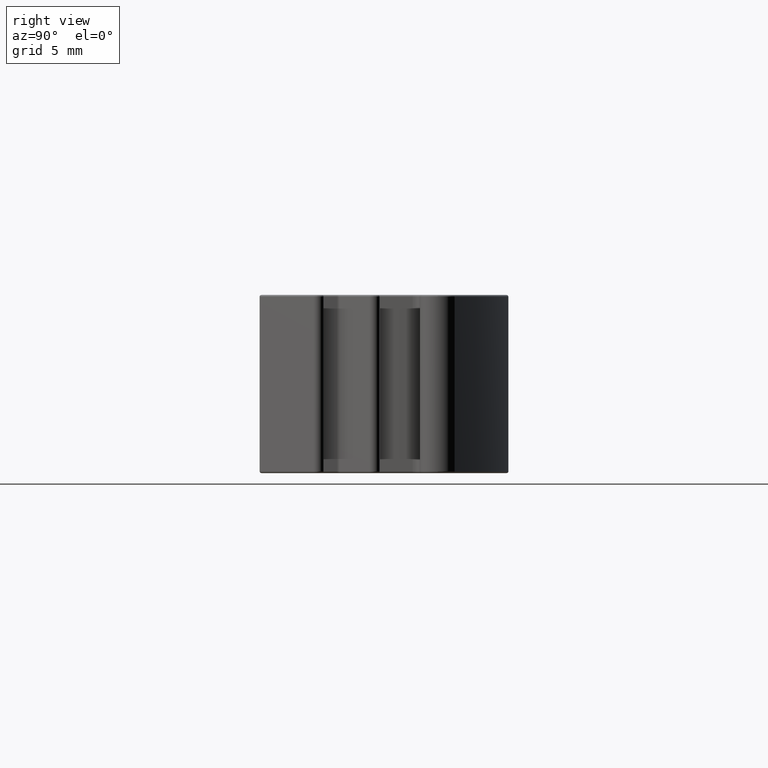
[diagram: clean part render]
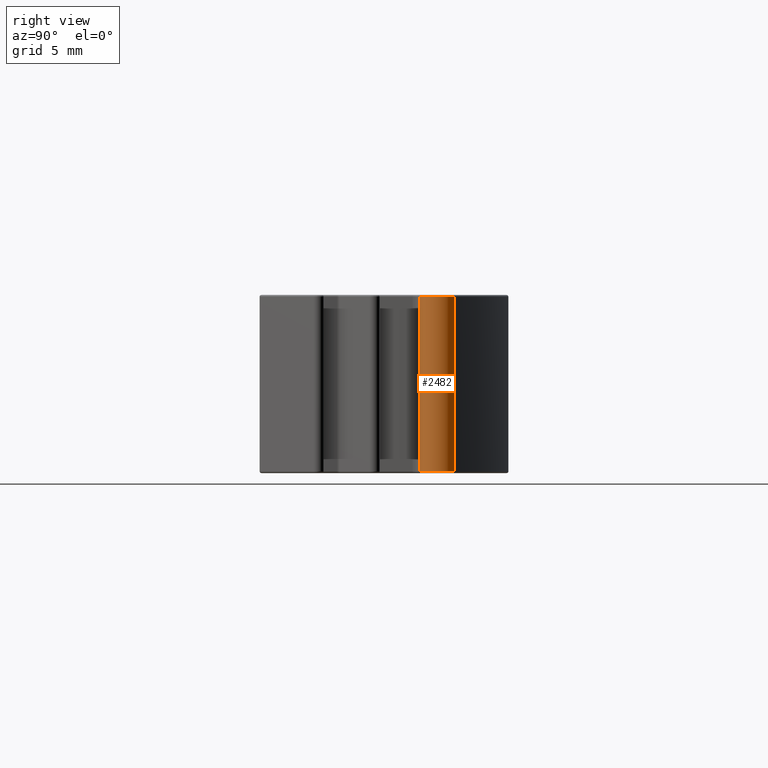
[diagram: same view with one face highlighted and labeled with its STEP entity id]
A machine part, right view. The second image highlights one B-rep face of the part: STEP entity #2482.
In plain terms, the highlighted cylindrical surface (edge-blend (fillet) strip) has radius 1 mm, axis along (0, 0, 1).
Its self-contained STEP definition (entity closure, byte-faithful):
#126 = LINE ( 'NONE', #732, #2239 ) ;
#179 = VECTOR ( 'NONE', #1301, 1000.000000000000000 ) ;
#221 = ORIENTED_EDGE ( 'NONE', *, *, #757, .T. ) ;
#319 = ORIENTED_EDGE ( 'NONE', *, *, #2400, .T. ) ;
#332 = LINE ( 'NONE', #576, #179 ) ;
#404 = AXIS2_PLACEMENT_3D ( 'NONE', #2473, #2204, #2907 ) ;
#436 = CIRCLE ( 'NONE', #404, 1.000000000000000900 ) ;
#576 = CARTESIAN_POINT ( 'NONE',  ( 17.64999999999999900, 8.999999999999998200, -5.000000000000000000 ) ) ;
#618 = DIRECTION ( 'NONE',  ( 1.000000000000000000, 0.0000000000000000000, 0.0000000000000000000 ) ) ;
#702 = VERTEX_POINT ( 'NONE', #2453 ) ;
#732 = CARTESIAN_POINT ( 'NONE',  ( 17.98039802197973500, 10.94384169598078000, -5.000000000000000000 ) ) ;
#757 = EDGE_CURVE ( 'NONE', #2553, #702, #2004, .T. ) ;
#777 = DIRECTION ( 'NONE',  ( 1.000000000000000000, 0.0000000000000000000, 0.0000000000000000000 ) ) ;
#778 = VERTEX_POINT ( 'NONE', #1295 ) ;
#845 = CIRCLE ( 'NONE', #1808, 1.000000000000000900 ) ;
#852 = EDGE_CURVE ( 'NONE', #778, #1712, #2668, .T. ) ;
#868 = CARTESIAN_POINT ( 'NONE',  ( 18.64999999999999900, 9.999999999999998200, -4.899999999999999500 ) ) ;
#1001 = ORIENTED_EDGE ( 'NONE', *, *, #2776, .T. ) ;
#1020 = EDGE_LOOP ( 'NONE', ( #1001, #2266, #319, #2136, #1740, #221 ) ) ;
#1137 = VERTEX_POINT ( 'NONE', #1758 ) ;
#1182 = DIRECTION ( 'NONE',  ( 0.0000000000000000000, 0.0000000000000000000, 1.000000000000000000 ) ) ;
#1183 = AXIS2_PLACEMENT_3D ( 'NONE', #1224, #1707, #1967 ) ;
#1212 = EDGE_CURVE ( 'NONE', #1137, #2541, #332, .T. ) ;
#1224 = CARTESIAN_POINT ( 'NONE',  ( 17.64999999999999900, 9.999999999999998200, -5.000000000000000000 ) ) ;
#1237 = CYLINDRICAL_SURFACE ( 'NONE', #1183, 1.000000000000000900 ) ;
#1295 = CARTESIAN_POINT ( 'NONE',  ( 17.98039802197973500, 10.94384169598078000, 4.899999999999998600 ) ) ;
#1301 = DIRECTION ( 'NONE',  ( 0.0000000000000000000, 0.0000000000000000000, 1.000000000000000000 ) ) ;
#1386 = FACE_OUTER_BOUND ( 'NONE', #1020, .T. ) ;
#1574 = DIRECTION ( 'NONE',  ( -0.0000000000000000000, -0.0000000000000000000, -1.000000000000000000 ) ) ;
#1576 = CARTESIAN_POINT ( 'NONE',  ( 17.64999999999999900, 8.999999999999998200, 4.899999999999998600 ) ) ;
#1609 = CARTESIAN_POINT ( 'NONE',  ( 18.64999999999999900, 9.999999999999998200, 4.899999999999998600 ) ) ;
#1707 = DIRECTION ( 'NONE',  ( 0.0000000000000000000, 0.0000000000000000000, 1.000000000000000000 ) ) ;
#1712 = VERTEX_POINT ( 'NONE', #1609 ) ;
#1740 = ORIENTED_EDGE ( 'NONE', *, *, #3054, .T. ) ;
#1758 = CARTESIAN_POINT ( 'NONE',  ( 17.64999999999999900, 8.999999999999998200, -4.899999999999999500 ) ) ;
#1760 = DIRECTION ( 'NONE',  ( 0.0000000000000000000, 0.0000000000000000000, 1.000000000000000000 ) ) ;
#1808 = AXIS2_PLACEMENT_3D ( 'NONE', #2025, #2296, #2286 ) ;
#1967 = DIRECTION ( 'NONE',  ( -1.000000000000000000, 0.0000000000000000000, 0.0000000000000000000 ) ) ;
#2004 = CIRCLE ( 'NONE', #2976, 1.000000000000000900 ) ;
#2025 = CARTESIAN_POINT ( 'NONE',  ( 17.64999999999999900, 9.999999999999998200, -4.899999999999999500 ) ) ;
#2064 = CARTESIAN_POINT ( 'NONE',  ( 17.64999999999999900, 9.999999999999998200, 4.899999999999998600 ) ) ;
#2136 = ORIENTED_EDGE ( 'NONE', *, *, #1212, .F. ) ;
#2204 = DIRECTION ( 'NONE',  ( -0.0000000000000000000, -0.0000000000000000000, -1.000000000000000000 ) ) ;
#2239 = VECTOR ( 'NONE', #1182, 1000.000000000000000 ) ;
#2266 = ORIENTED_EDGE ( 'NONE', *, *, #852, .T. ) ;
#2286 = DIRECTION ( 'NONE',  ( 1.000000000000000000, 0.0000000000000000000, 0.0000000000000000000 ) ) ;
#2296 = DIRECTION ( 'NONE',  ( 0.0000000000000000000, 0.0000000000000000000, 1.000000000000000000 ) ) ;
#2400 = EDGE_CURVE ( 'NONE', #1712, #2541, #436, .T. ) ;
#2453 = CARTESIAN_POINT ( 'NONE',  ( 17.98039802197973500, 10.94384169598078000, -4.899999999999999500 ) ) ;
#2473 = CARTESIAN_POINT ( 'NONE',  ( 17.64999999999999900, 9.999999999999998200, 4.899999999999998600 ) ) ;
#2482 = ADVANCED_FACE ( 'NONE', ( #1386 ), #1237, .T. ) ;
#2541 = VERTEX_POINT ( 'NONE', #1576 ) ;
#2553 = VERTEX_POINT ( 'NONE', #868 ) ;
#2603 = AXIS2_PLACEMENT_3D ( 'NONE', #2064, #1574, #618 ) ;
#2668 = CIRCLE ( 'NONE', #2603, 1.000000000000000900 ) ;
#2776 = EDGE_CURVE ( 'NONE', #702, #778, #126, .T. ) ;
#2907 = DIRECTION ( 'NONE',  ( 1.000000000000000000, 0.0000000000000000000, 0.0000000000000000000 ) ) ;
#2976 = AXIS2_PLACEMENT_3D ( 'NONE', #3015, #1760, #777 ) ;
#3015 = CARTESIAN_POINT ( 'NONE',  ( 17.64999999999999900, 9.999999999999998200, -4.899999999999999500 ) ) ;
#3054 = EDGE_CURVE ( 'NONE', #1137, #2553, #845, .T. ) ;